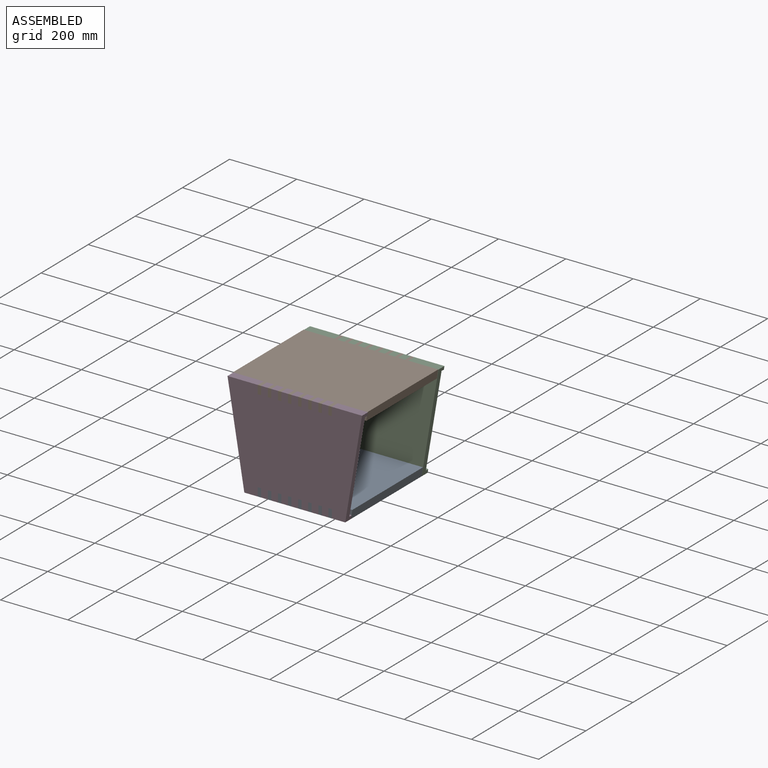
[diagram: assembled view]
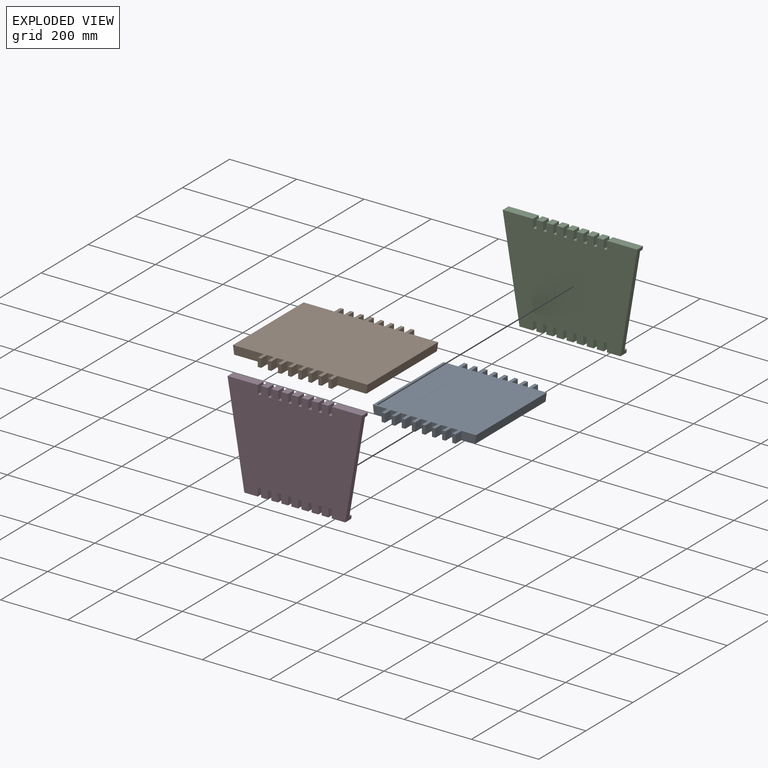
[diagram: exploded view]
GUIDED TOUR — MATED ASSEMBLY (Onshape document a05136df9b7d38007dce09d5, AutoMate assembly a05136df9b7d38007dce09d5_6b2fc101cfd2b516107c8712_237aa20c99f3a1fa4367d6a6_default)

This assembly has 4 components, labeled P0..P3 below (a component is one placed occurrence of a part; the same part can appear more than once), held together by 3 mates. A mate is a constraint between two components; its type names the relative motion it leaves free:
  FASTENED — locks the two components together rigidly (no relative motion).
Axis/direction vectors are unit vectors and 'through' points are millimeter coordinates, both in the assembly's world frame.

MATES
  1. FASTENED "Fastened 1": P1 <-> P3, direction (0.000, -1.000, 0.000) through (-17.35, -343.74, 201.11) mm
  2. FASTENED "Fastened 3": P3 <-> P0, direction (0.000, 1.000, 0.000) through (-197.35, -343.74, -98.89) mm
  3. FASTENED "Fastened 2": P2 <-> P1, direction (0.000, -1.000, 0.000) through (-17.35, -43.74, 201.11) mm

ASSEMBLY ORDER
  1. P3 — the base component [order verified]
  2. P0 [order verified]
  3. P1 [order verified]
  4. P2 [order verified]
(P0 verified with a relaxed clearance tolerance: the source model stores slight part interference there.)
Order-tag legend:
  [order verified] — this step's position reverses a verified removal order: the component was checked to insert without passing through the ones already placed.

Of the 4 components, 2 carry the full construction recipe — the FeatureScript program that regenerates the part's solid from scratch; the rest are supplied as boundary geometry only.
Each toured component is shown spotlighted twice — in the assembled view, then in the exploded view, where a leader line traces a displaced component back to its assembled socket (saturated green if recipe-attached, orange if geometry-only; every other component desaturated gray) — followed by its recipe or geometry summary and the mates that hold it.
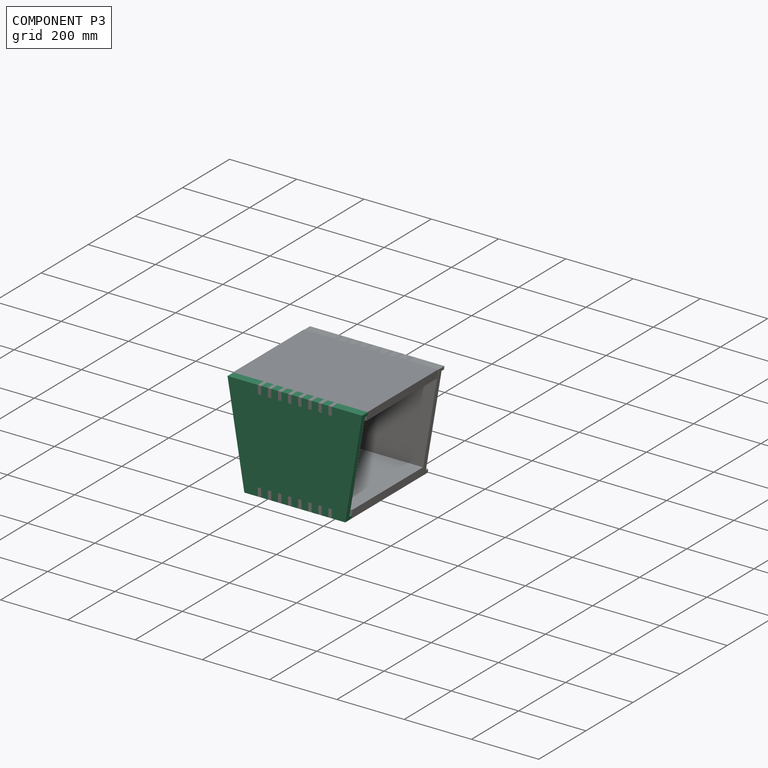
[diagram: component P3 — assembled]
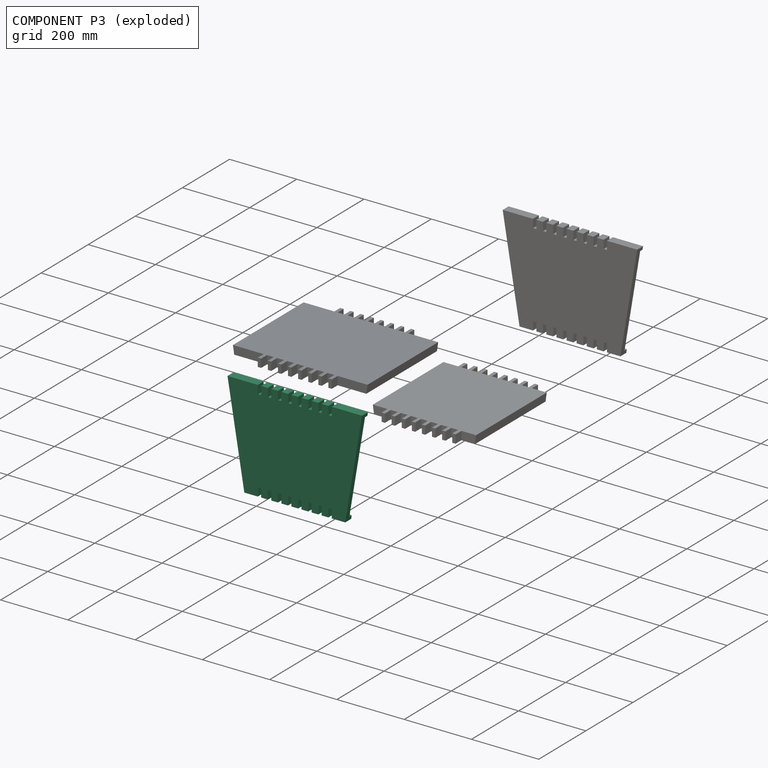
[diagram: component P3 — exploded]
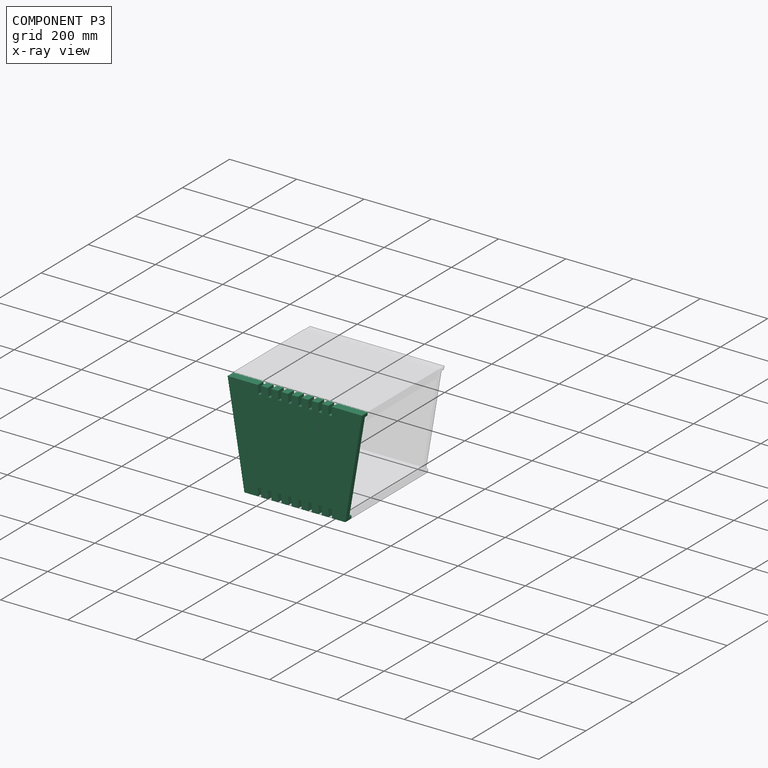
[diagram: component P3 — x-ray view]
COMPONENT P3 — same part as P2 (CADFS 00633339); its construction recipe is shown at P2.
Held by: FASTENED mate "Fastened 1" to P1; FASTENED mate "Fastened 3" to P0.
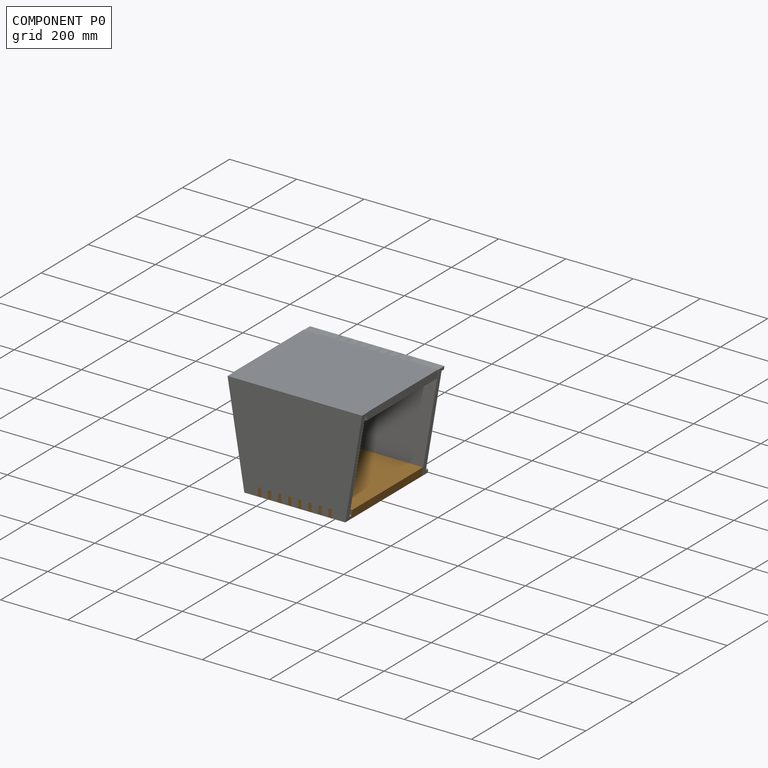
[diagram: component P0 — assembled]
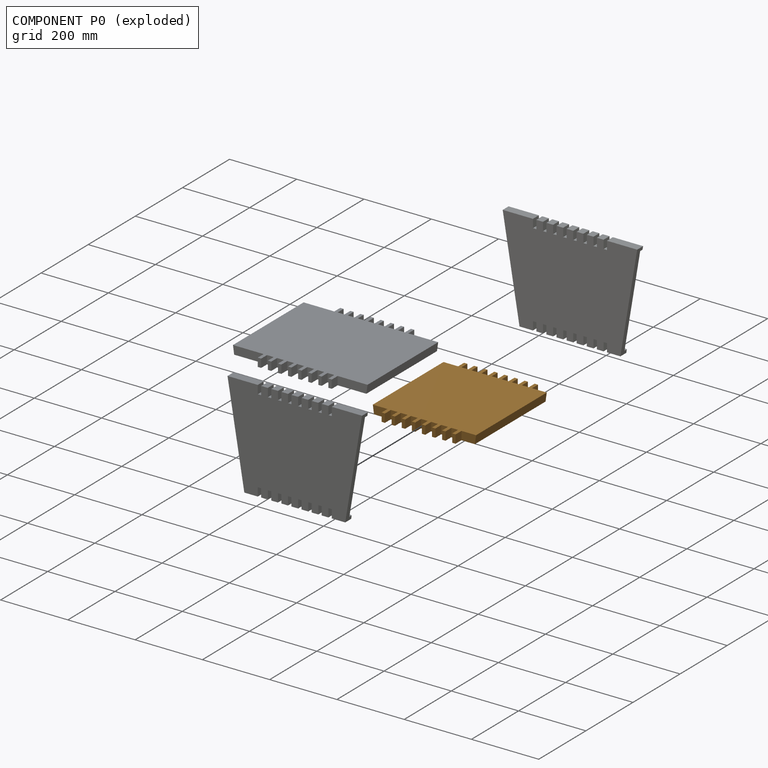
[diagram: component P0 — exploded]
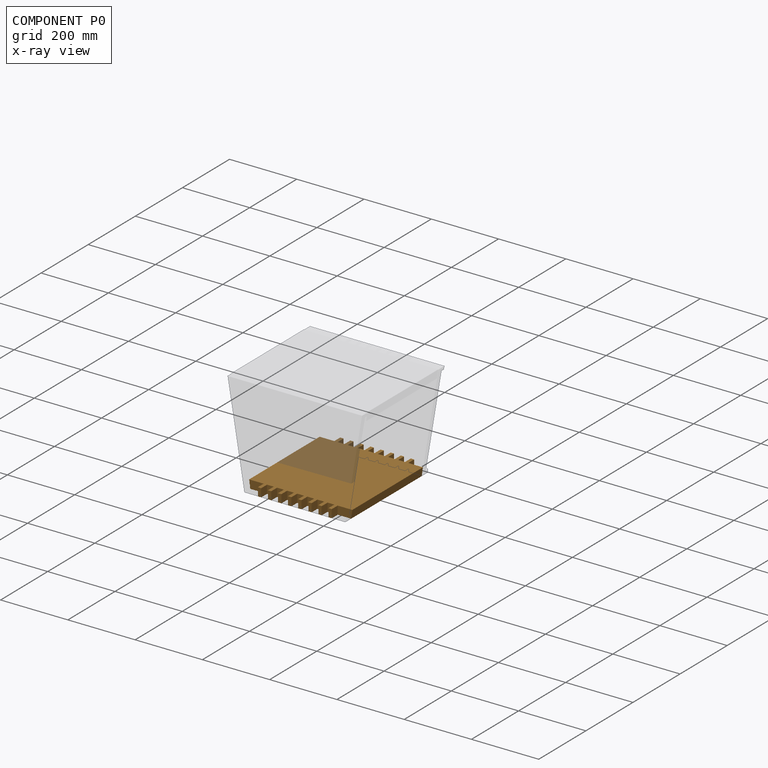
[diagram: component P0 — x-ray view]
COMPONENT P0 — geometry summary (no construction recipe available for this part):
  bounding box: 350.0 x 307.0 x 25.0 mm
  B-rep topology: 1 solid, 70 faces, 408 edges
  volume: 2376351 mm^3 (88% of its bounding box)
  symmetry: 2-fold rotationally symmetric about the z axis; mirror-symmetric across its x mid-plane, y mid-plane
Held by: FASTENED mate "Fastened 3" to P3.
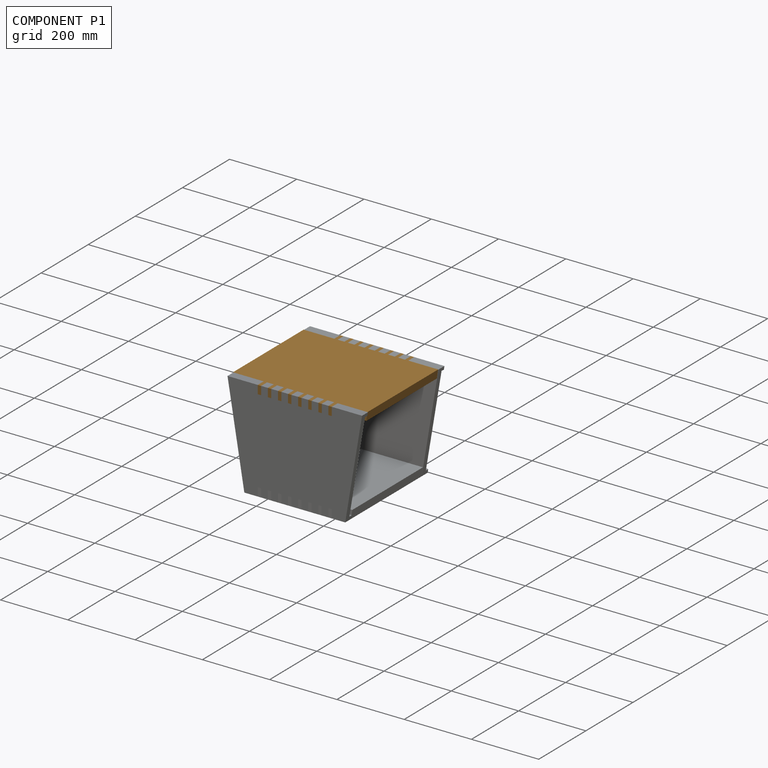
[diagram: component P1 — assembled]
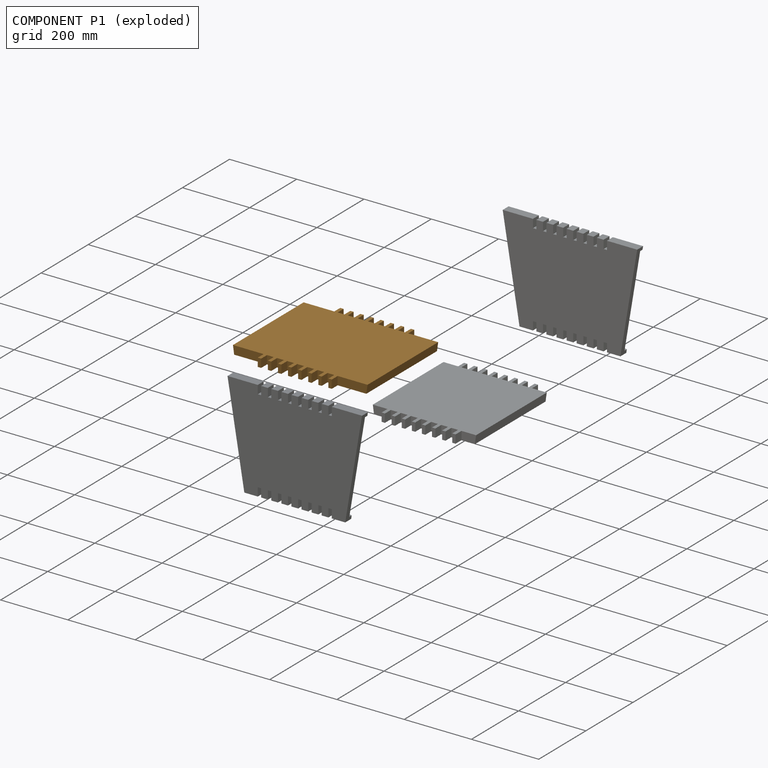
[diagram: component P1 — exploded]
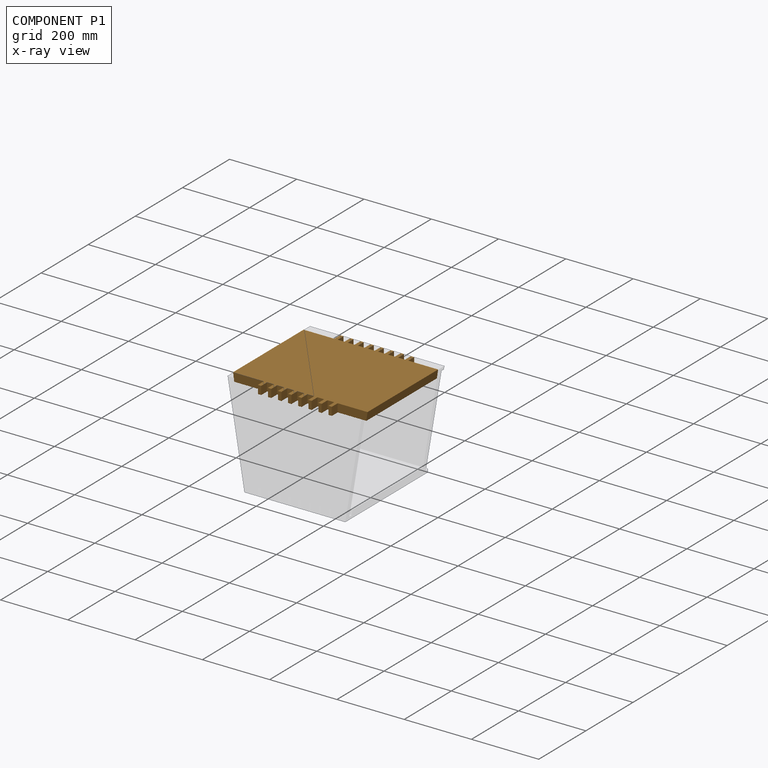
[diagram: component P1 — x-ray view]
COMPONENT P1 — geometry summary (no construction recipe available for this part):
  bounding box: 400.0 x 350.0 x 25.0 mm
  B-rep topology: 1 solid, 70 faces, 408 edges
  volume: 3073649 mm^3 (88% of its bounding box)
  symmetry: 2-fold rotationally symmetric about the z axis; mirror-symmetric across its x mid-plane, y mid-plane
Held by: FASTENED mate "Fastened 1" to P3; FASTENED mate "Fastened 2" to P2.
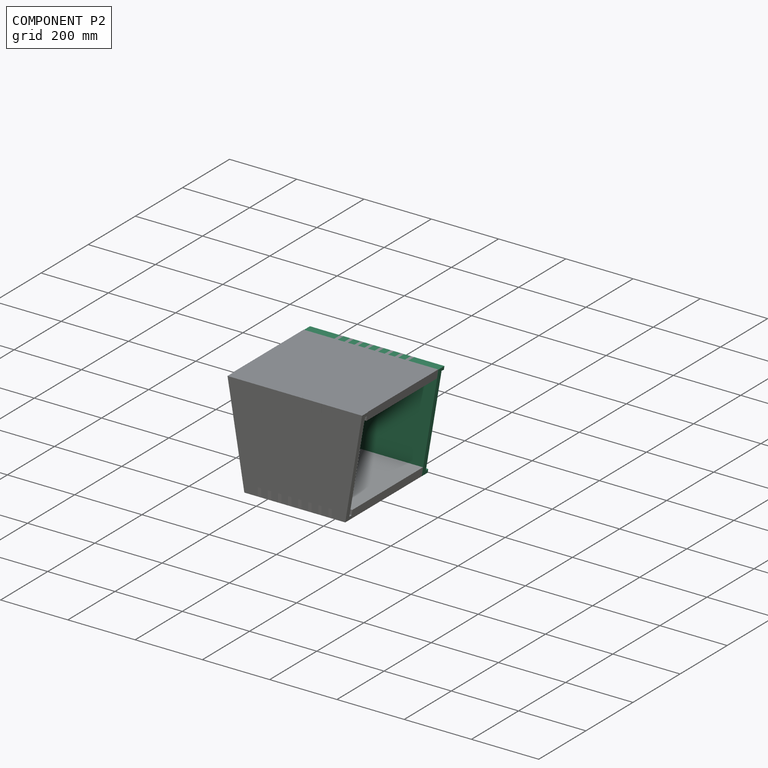
[diagram: component P2 — assembled]
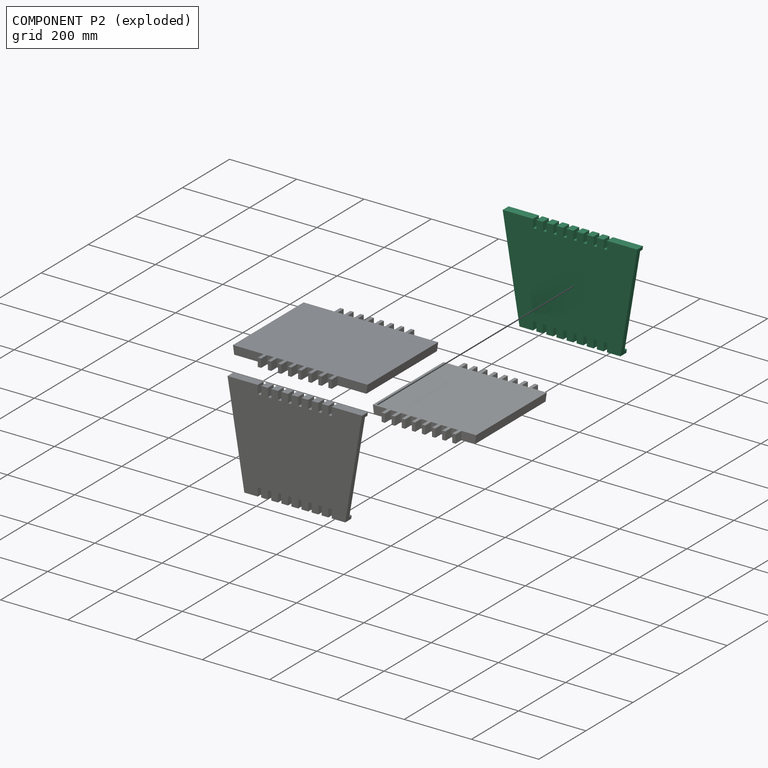
[diagram: component P2 — exploded]
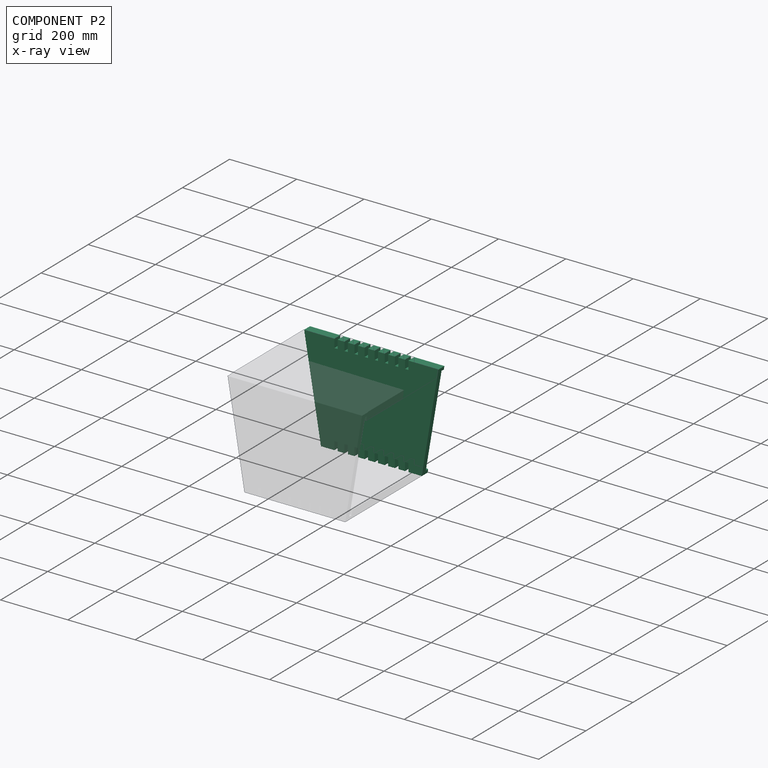
[diagram: component P2 — x-ray view]
COMPONENT P2 — recipe-attached (CADFS 00633339, mesh-verified: the recipe's output STEP matches this component's geometry to below the mesh-comparison resolution (tessellation chordal tolerance ~0.751 mm)).
Held by: FASTENED mate "Fastened 2" to P1.
Construction recipe (FeatureScript — the CAD program that rebuilds this solid; sketch coordinates are in the units given by the * unit suffixes, e.g. mm):

FeatureScript 1511;
import(path : "onshape/std/geometry.fs", version : "1511.0");
import(path : "onshape/std/common.fs", version : "1511.0");
const mm = millimeter;
const VERTEX = EntityType.VERTEX;
const EDGE = EntityType.EDGE;
const FACE = EntityType.FACE;
const BODY = EntityType.BODY;
function v(x, y){return vector(x, y);}
function OD(order){return orderDisambiguation(order);}
function OSD(set){return originalSetDisambiguation(set);}
function TD(topology){return topologyDisambiguation(topology);}
function TDD(query){return trueDependencyDisambiguation(query);}
function sQuery(a, b, c) {return sketchEntityQuery(a, b, c);}

annotation { "Feature Type Name" : "Feature", "Feature Type Description" : "" }
export const myFeature = defineFeature(function(context is Context, id is Id, definition is map)
    precondition{}
    {
        {
            var Q0;
            Q0=qCreatedBy(makeId("Front.planeOp"),FACE);
            var sketch = newSketch(context, id + "F0", { "sketchPlane" : qUnion([Q0])});
            skLineSegment(sketch, "E0.bottom", {"start": v(150, -150) * mm, "end": v(-150, -150) * mm});
            skPoint(sketch, "E0.middle", {"position": v(0, 0) * mm});
            skLineSegment(sketch, "E1", {"start": v(-200, 150) * mm, "end": v(-150, -150) * mm});
            skLineSegment(sketch, "E2", {"start": v(150, -150) * mm, "end": v(200, 150) * mm});
            skLineSegment(sketch, "E3", {"start": v(-200, 150) * mm, "end": v(200, 150) * mm});
            skLineSegment(sketch, "E4.2.0.1", {"start": v(-70, 150) * mm, "end": v(-80, 150) * mm});
            skLineSegment(sketch, "E4.3.0.0", {"start": v(-110, 150) * mm, "end": v(-110, 125) * mm});
            skLineSegment(sketch, "E4.3.0.1", {"start": v(-100, 150) * mm, "end": v(-110, 150) * mm});
            skLineSegment(sketch, "E4.3.0.2", {"start": v(-100, 125) * mm, "end": v(-110, 125) * mm});
            skLineSegment(sketch, "E4.3.0.3", {"start": v(-100, 150) * mm, "end": v(-100, 125) * mm});
            skLineSegment(sketch, "E5.1.0.0", {"start": v(-80, 150) * mm, "end": v(-80, 125) * mm});
            skLineSegment(sketch, "E5.1.0.2", {"start": v(-70, 125) * mm, "end": v(-80, 125) * mm});
            skLineSegment(sketch, "E5.1.0.3", {"start": v(-70, 150) * mm, "end": v(-70, 125) * mm});
            skLineSegment(sketch, "E5.2.0.0", {"start": v(-50, 150) * mm, "end": v(-50, 125) * mm});
            skLineSegment(sketch, "E5.2.0.1", {"start": v(-40, 150) * mm, "end": v(-50, 150) * mm});
            skLineSegment(sketch, "E5.2.0.2", {"start": v(-40, 125) * mm, "end": v(-50, 125) * mm});
            skLineSegment(sketch, "E5.2.0.3", {"start": v(-40, 150) * mm, "end": v(-40, 125) * mm});
            skLineSegment(sketch, "E5.3.0.0", {"start": v(-20, 150) * mm, "end": v(-20, 125) * mm});
            skLineSegment(sketch, "E5.3.0.1", {"start": v(-10, 150) * mm, "end": v(-20, 150) * mm});
            skLineSegment(sketch, "E5.3.0.2", {"start": v(-10, 125) * mm, "end": v(-20, 125) * mm});
            skLineSegment(sketch, "E5.3.0.3", {"start": v(-10, 150) * mm, "end": v(-10, 125) * mm});
            skLineSegment(sketch, "E5.4.0.0", {"start": v(10, 150) * mm, "end": v(10, 125) * mm});
            skLineSegment(sketch, "E5.4.0.1", {"start": v(20, 150) * mm, "end": v(10, 150) * mm});
            skLineSegment(sketch, "E5.4.0.2", {"start": v(20, 125) * mm, "end": v(10, 125) * mm});
            skLineSegment(sketch, "E5.4.0.3", {"start": v(20, 150) * mm, "end": v(20, 125) * mm});
            skLineSegment(sketch, "E5.5.0.0", {"start": v(40, 150) * mm, "end": v(40, 125) * mm});
            skLineSegment(sketch, "E5.5.0.1", {"start": v(50, 150) * mm, "end": v(40, 150) * mm});
            skLineSegment(sketch, "E5.5.0.2", {"start": v(50, 125) * mm, "end": v(40, 125) * mm});
            skLineSegment(sketch, "E5.5.0.3", {"start": v(50, 150) * mm, "end": v(50, 125) * mm});
            skLineSegment(sketch, "E5.6.0.0", {"start": v(70, 150) * mm, "end": v(70, 125) * mm});
            skLineSegment(sketch, "E5.6.0.1", {"start": v(80, 150) * mm, "end": v(70, 150) * mm});
            skLineSegment(sketch, "E5.6.0.2", {"start": v(80, 125) * mm, "end": v(70, 125) * mm});
            skLineSegment(sketch, "E5.6.0.3", {"start": v(80, 150) * mm, "end": v(80, 125) * mm});
            skLineSegment(sketch, "E6", {"start": v(-175, 0) * mm, "end": v(175, 0) * mm});
            skLineSegment(sketch, "E7.1.0.0", {"start": v(110, 150) * mm, "end": v(110, 125) * mm});
            skLineSegment(sketch, "E7.1.0.1", {"start": v(100, 150) * mm, "end": v(100, 125) * mm});
            skLineSegment(sketch, "E7.1.0.2", {"start": v(110, 125) * mm, "end": v(100, 125) * mm});
            skLineSegment(sketch, "E8.MirrorCS", {"start": v(-70, -150) * mm, "end": v(-80, -150) * mm});
            skLineSegment(sketch, "E9.MirrorCS", {"start": v(-70, -125) * mm, "end": v(-80, -125) * mm});
            skLineSegment(sketch, "E10.MirrorCS", {"start": v(-100, -125) * mm, "end": v(-110, -125) * mm});
            skLineSegment(sketch, "E11.MirrorCS", {"start": v(-100, -150) * mm, "end": v(-110, -150) * mm});
            skLineSegment(sketch, "E12.MirrorCS", {"start": v(20, -125) * mm, "end": v(10, -125) * mm});
            skLineSegment(sketch, "E13.MirrorCS", {"start": v(-40, -125) * mm, "end": v(-50, -125) * mm});
            skLineSegment(sketch, "E14.MirrorCS", {"start": v(-40, -150) * mm, "end": v(-50, -150) * mm});
            skLineSegment(sketch, "E15.MirrorCS", {"start": v(80, -125) * mm, "end": v(70, -125) * mm});
            skLineSegment(sketch, "E16.MirrorCS", {"start": v(20, -150) * mm, "end": v(10, -150) * mm});
            skLineSegment(sketch, "E17.MirrorCS", {"start": v(80, -150) * mm, "end": v(70, -150) * mm});
            skLineSegment(sketch, "E18.MirrorCS", {"start": v(110, -125) * mm, "end": v(100, -125) * mm});
            skLineSegment(sketch, "E19.MirrorCS", {"start": v(-10, -150) * mm, "end": v(-20, -150) * mm});
            skLineSegment(sketch, "E20.MirrorCS", {"start": v(50, -125) * mm, "end": v(40, -125) * mm});
            skLineSegment(sketch, "E21.MirrorCS", {"start": v(50, -150) * mm, "end": v(40, -150) * mm});
            skLineSegment(sketch, "E22.MirrorCS", {"start": v(-10, -125) * mm, "end": v(-20, -125) * mm});
            skLineSegment(sketch, "E23.MirrorCS", {"start": v(-70, -150) * mm, "end": v(-70, -125) * mm});
            skLineSegment(sketch, "E24.MirrorCS", {"start": v(-40, -150) * mm, "end": v(-40, -125) * mm});
            skLineSegment(sketch, "E25.MirrorCS", {"start": v(-80, -150) * mm, "end": v(-80, -125) * mm});
            skLineSegment(sketch, "E26.MirrorCS", {"start": v(-100, -150) * mm, "end": v(-100, -125) * mm});
            skLineSegment(sketch, "E27.MirrorCS", {"start": v(-110, -150) * mm, "end": v(-110, -125) * mm});
            skLineSegment(sketch, "E28.MirrorCS", {"start": v(-50, -150) * mm, "end": v(-50, -125) * mm});
            skLineSegment(sketch, "E29.MirrorCS", {"start": v(10, -150) * mm, "end": v(10, -125) * mm});
            skLineSegment(sketch, "E30.MirrorCS", {"start": v(50, -150) * mm, "end": v(50, -125) * mm});
            skLineSegment(sketch, "E31.MirrorCS", {"start": v(110, -150) * mm, "end": v(110, -125) * mm});
            skLineSegment(sketch, "E32.MirrorCS", {"start": v(70, -150) * mm, "end": v(70, -125) * mm});
            skLineSegment(sketch, "E33.MirrorCS", {"start": v(40, -150) * mm, "end": v(40, -125) * mm});
            skLineSegment(sketch, "E34.MirrorCS", {"start": v(-10, -150) * mm, "end": v(-10, -125) * mm});
            skLineSegment(sketch, "E35.MirrorCS", {"start": v(80, -150) * mm, "end": v(80, -125) * mm});
            skLineSegment(sketch, "E36.MirrorCS", {"start": v(100, -150) * mm, "end": v(100, -125) * mm});
            skLineSegment(sketch, "E37.MirrorCS", {"start": v(20, -150) * mm, "end": v(20, -125) * mm});
            skLineSegment(sketch, "E38.MirrorCS", {"start": v(-20, -150) * mm, "end": v(-20, -125) * mm});
            skSolve(sketch);
        }
        {
            var Q0;
            {var subQ14=sQuery(id+"F0.wireOp",EDGE,"E1");Q0=makeQuery(id+"F0.imprint","IMPRINT",FACE,{"disambiguationData":[TD([[makeQuery(id+"F0.imprint","IMPRINT",EDGE,{"derivedFrom":subQ14}),1.0]])]});}
            extrude(context, id + "F1", {"entities" : qUnion([Q0]), "depth" : 25 * mm, "offsetDistance" : 25 * mm});
        }
        {
            var Q0;
            Q0=makeQuery(id+"F1.opExtrude","SWEPT_FACE",FACE,{"disambiguationData":[OSD([sQuery(id+"F0.wireOp",EDGE,"E2")])]});
            var sketch = newSketch(context, id + "F2", { "sketchPlane" : qUnion([Q0])});
            skLineSegment(sketch, "E39.bottom", {"start": v(0, 170.84) * mm, "end": v(-10, 170.84) * mm});
            skLineSegment(sketch, "E39.top", {"start": v(0, -113.3) * mm, "end": v(-10, -113.3) * mm});
            skLineSegment(sketch, "E39.left", {"start": v(0, 170.84) * mm, "end": v(0, -113.3) * mm});
            skLineSegment(sketch, "E39.right", {"start": v(-10, 170.84) * mm, "end": v(-10, -113.3) * mm});
            skSolve(sketch);
        }
        {
            var Q0;
            Q0=makeQuery(id+"F2.imprint","IMPRINT",FACE,{"disambiguationData":[TD([[makeQuery(id+"F2.imprint","IMPRINT",EDGE,{"derivedFrom":sQuery(id+"F2.wireOp",EDGE,"E39.bottom")}),1.0]])]});
            extrude(context, id + "F3", {"entities" : qUnion([Q0]), "operationType" : NewBodyOperationType.REMOVE, "oppositeDirection" : true, "depth" : 10 * mm, "offsetDistance" : 25 * mm});
        }
    });
PROVENANCE & LICENSES
Assembly (occurrences, transforms, mates, per-part STEP geometry): AutoMate dataset, Zenodo record 7776208, CC0.
Construction recipes: CADFS (HuggingFace VladPyatov/CADFS, CC-BY-4.0, layered over the ABC dataset), FeatureScript reconstruction programs keyed by ABC model id.
Join: ABC meta listings map ABC model id -> Onshape documentId; within a shared document, parts are matched by geometric signature (bounding-box dims + volume at 0.1% relative tolerance, exact B-rep face/solid counts).
Verification: 2 of this assembly's 4 components carry a recipe attachment, and every attachment is mesh-verified: the CADFS STEP and the AutoMate member STEP were compared as meshes in their shared local frame (symmetric sampled-point-to-mesh distance); worst across the 2 attachments: below the mesh-comparison resolution (tessellation chordal tolerance ~0.751 mm) on a 501 mm part.
Renders: orthographic iso camera (az 35 / el 25); the floor grid conveys scale (grid pitch printed in each image; no ruler). In the exploded view each component is displaced by its stored offset vector: the offsets alone carry the explosion direction (mate normal/axis signs are not orientation cues and do not encode it), and separation distances are assigned per mate-chain, not proportionally to assembly-order depth.
